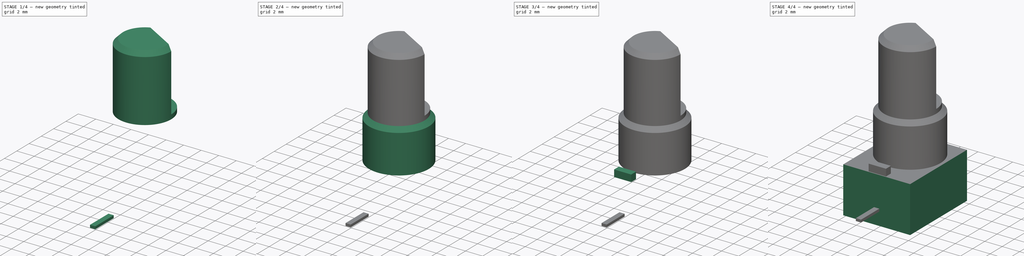
[diagram: build sequence overview — one tinted view per stage of 4, left to right]
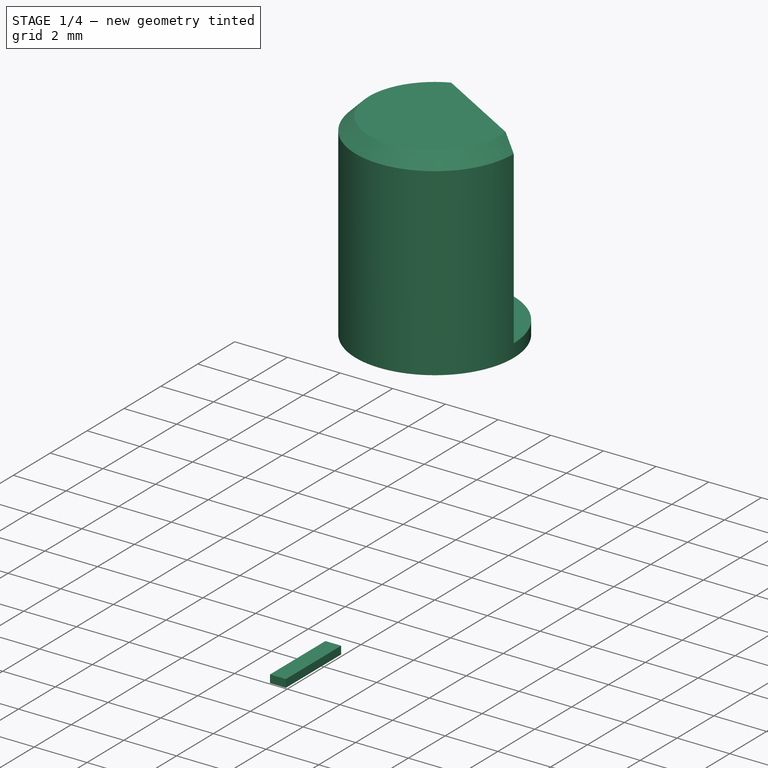
[diagram: stage 1 of 4 — iso view after this stage's code; geometry added in this stage tinted green]
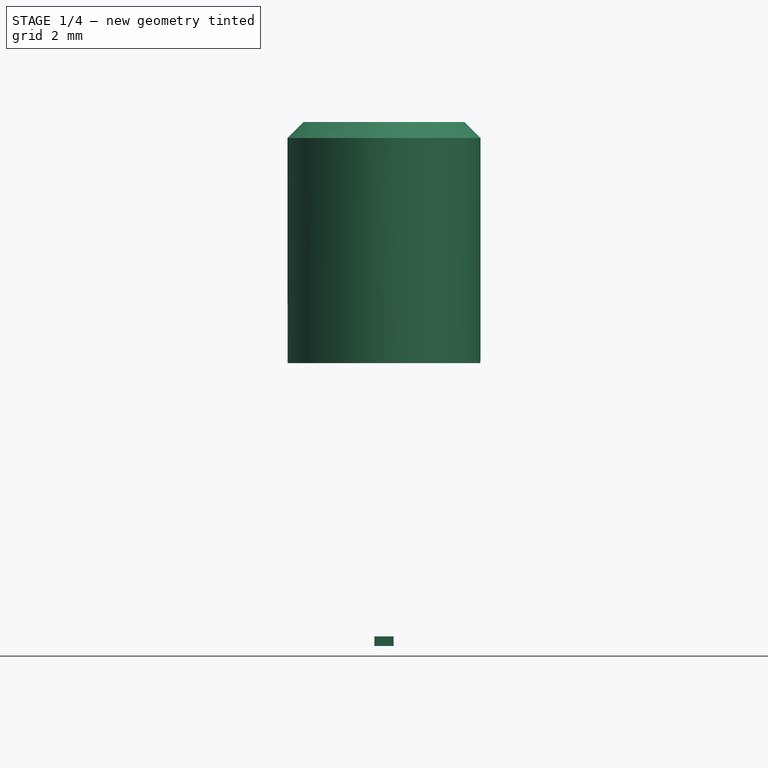
[diagram: stage 1 of 4 — front view after this stage's code; geometry added in this stage tinted green]
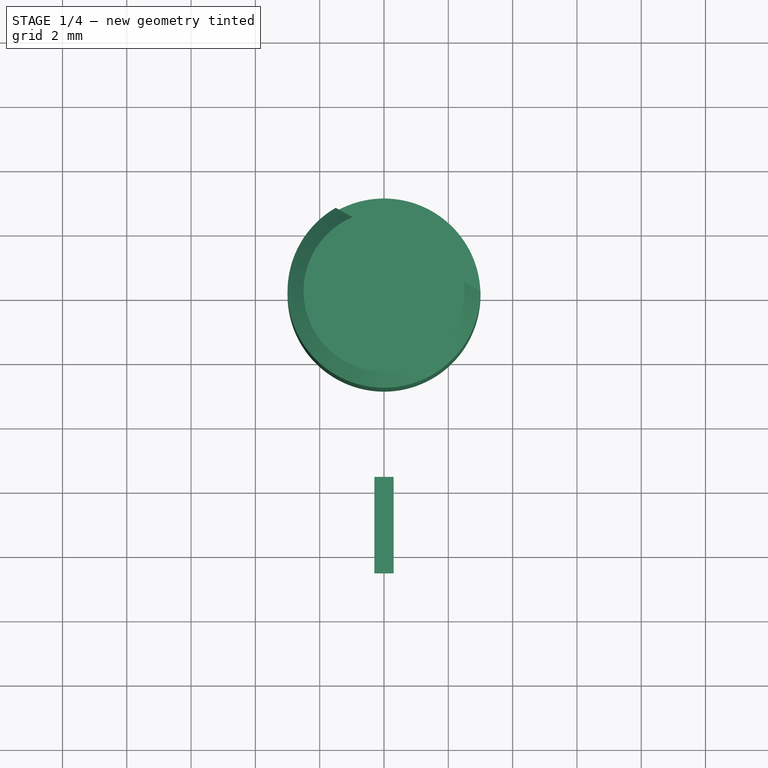
[diagram: stage 1 of 4 — top view after this stage's code; geometry added in this stage tinted green]
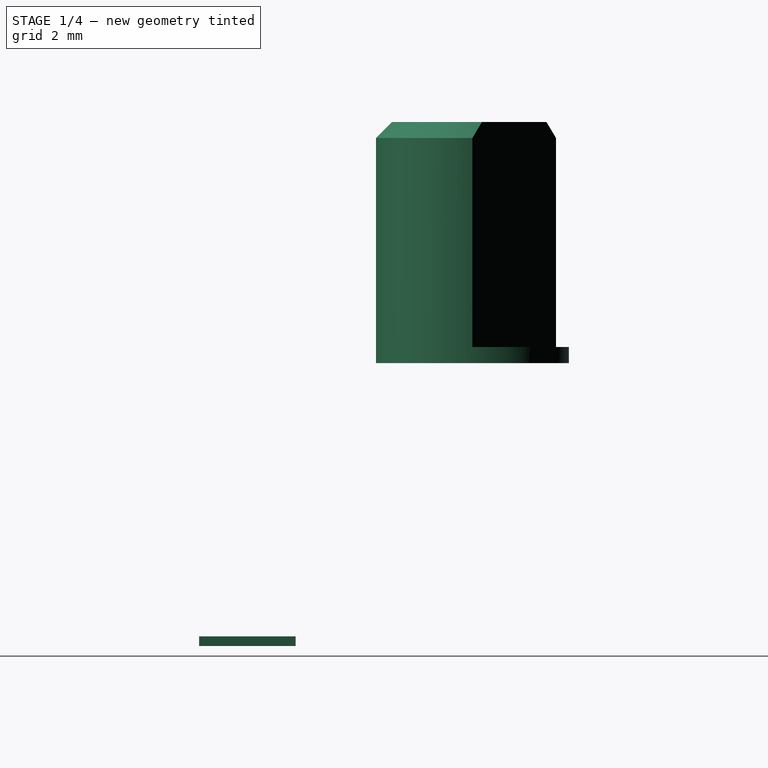
[diagram: stage 1 of 4 — right view after this stage's code; geometry added in this stage tinted green]
FCSTD DOCUMENT  (FreeCAD 0.18R16110 (Git))
Label: Alpha Taiwan Spreadsheet RD701F-20B1-12.5F
License: All rights reserved
LicenseURL: http://en.wikipedia.org/wiki/All_rights_reserved
objects: Sketcher::SketchObject×9, PartDesign::Body×9, PartDesign::Pad×5, PartDesign::Revolution×2, PartDesign::FeatureBase×2, Spreadsheet::Sheet×1, Part::Helix×1, PartDesign::ShapeBinder×1, PartDesign::SubtractivePipe×1, PartDesign::Pocket×1, App::Part×1
note: 40 computed .brp shape members not serialized (recipe doc carries the construction recipe); baked Part::Feature solids carry a one-line shape summary decoded from their .brp

FEATURE [PartDesign::Body] Body004  label="Thread"
  Group = -> [ShapeBinder,Sketch004,Sketch005,Revolution,SubtractivePipe]
  Origin = -> Origin005
  Tip = -> SubtractivePipe
FEATURE [Sketcher::SketchObject] Sketch006
  AttachmentOffset = pos=(0,10.3,0) rot=(0,1,0;1.5708rad)
  MapMode = 5
  Placement = pos=(0,2.3e-15,10.3) rot=(0.57735,0.57735,0.57735;2.0944rad)
  Support = -> [XZ_Plane006]
  expr: AttachmentOffset.Base.y = Data.body_z + Data.thread_z
  expr: AttachmentOffset.Base.z = 0
  expr: Constraints[12] = Data.shaft_r - 0.5mm
  expr: Constraints[11] = Data.shaft_r
  expr: Constraints[10] = Data.shaft_z
  sketch-geometry (5):
    g0: LineSegment StartX=0 StartY=0 StartZ=0 EndX=0 EndY=7.5 EndZ=0
    g1: LineSegment StartX=0 StartY=7.5 StartZ=0 EndX=2.5 EndY=7.5 EndZ=0
    g2: LineSegment StartX=2.5 StartY=7.5 StartZ=0 EndX=3 EndY=7 EndZ=0
    g3: LineSegment StartX=3 StartY=7 StartZ=0 EndX=3 EndY=0 EndZ=0
    g4: LineSegment StartX=3 StartY=0 StartZ=0 EndX=0 EndY=0 EndZ=0
  constraints (15):
    c: PointOnObject(g0,g-1)
    c: Vertical(g0)
    c: Coincident(g0,g1)
    c: Horizontal(g1)
    c: Coincident(g1,g2)
    c: Coincident(g2,g3)
    c: PointOnObject(g3,g-1)
    c: Vertical(g3)
    c: Coincident(g3,g4)
    c: Coincident(g4,g0)
    c: DistanceY(g0,g0) = 7.5
    c: DistanceX(g4,g4) = 3
    c: DistanceX(g1,g1) = 2.5
    c: Angle(g2,g3) = 2.35619
    c: PointOnObject(g0,g-2)
FEATURE [PartDesign::Revolution] Revolution001
  Angle = 360
  Axis = (0,2e-16,1)
  Base = (0,2.3e-15,10.3)
  Placement = pos=(0,0,0) rot=(1,0,0;1.5708rad)
  Profile = -> Sketch006
  ReferenceAxis = -> Sketch006 [V_Axis]
  Reversed = true
FEATURE [Sketcher::SketchObject] Sketch007
  AttachmentOffset = pos=(0,0,1.5) rot=(0,0,1;0rad)
  MapMode = 5
  Placement = pos=(0,0,1.5) rot=(0,0,1;0rad)
  Support = -> [XY_Plane007]
  expr: Constraints[10] = Data.body_y2
  expr: Constraints[9] = Data.terminal_x
  expr: AttachmentOffset.Base.z = Data.terminal_zpos
  expr: Constraints[8] = Data.terminal_y
  sketch-geometry (4):
    g0: LineSegment StartX=-0.3 StartY=-5.5 StartZ=0 EndX=0.3 EndY=-5.5 EndZ=0
    g1: LineSegment StartX=0.3 StartY=-5.5 StartZ=0 EndX=0.3 EndY=-8.5 EndZ=0
    g2: LineSegment StartX=0.3 StartY=-8.5 StartZ=0 EndX=-0.3 EndY=-8.5 EndZ=0
    g3: LineSegment StartX=-0.3 StartY=-8.5 StartZ=0 EndX=-0.3 EndY=-5.5 EndZ=0
  constraints (11):
    c: Coincident(g0,g1)
    c: Coincident(g1,g2)
    c: Coincident(g2,g3)
    c: Coincident(g3,g0)
    c: Horizontal(g2)
    c: Vertical(g1)
    c: Vertical(g3)
    c: Symmetric(g0,g0,g-2)
    c: DistanceY(g1,g1) = 3
    c: DistanceX(g0,g0) = 0.6
    c: DistanceY(g0,g-1) = 5.5
FEATURE [PartDesign::Pad] Pad004
  Length = 0.3
  Length2 = 100
  Profile = -> Sketch007
  Type = 0
  expr: Length = Data.terminal_z
FEATURE [PartDesign::Body] Body008  label="Terminal_3"
  Group = -> [Clone001]
  Origin = -> Origin009
  Placement = pos=(2,0,0) rot=(0,0,1;0rad)
  Tip = -> Clone001
  expr: Placement.Base.x = Data.terminal_p
FEATURE [Sketcher::SketchObject] Sketch008
  AttachmentOffset = pos=(0,0,17.8) rot=(0,0,1;0rad)
  MapMode = 5
  Placement = pos=(0,0,17.8) rot=(0,0,1;0rad)
  Support = -> [XY_Plane006]
  expr: AttachmentOffset.Base.z = Data.body_z + Data.thread_z + Data.shaft_z
  sketch-geometry (7):
    g0: LineSegment [constr] StartX=0 StartY=0 StartZ=0 EndX=5.75225 EndY=9.96319 EndZ=0
    g1: LineSegment StartX=-2.25735 StartY=3.03533 StartZ=0 EndX=3.75735 EndY=-0.437256 EndZ=0
    g2: LineSegment StartX=3.75735 StartY=-0.437256 StartZ=0 EndX=5.52528 EndY=1.47889 EndZ=0
    g3: LineSegment StartX=5.52528 StartY=1.47889 StartZ=0 EndX=-1.48189 EndY=5.52448 EndZ=0
    g4: LineSegment StartX=-1.48189 StartY=5.52448 StartZ=0 EndX=-2.25735 EndY=3.03533 EndZ=0
    g5: GeomPoint X=2.0217 Y=3.50168 Z=0
    g6: GeomPoint X=0.75 Y=1.29904 Z=0
  constraints (13):
    c: Coincident(g0,g-1)
    c: Angle(g0,g-2) = 0.523599
    c: Coincident(g1,g2)
    c: Coincident(g2,g3)
    c: Coincident(g3,g4)
    c: Coincident(g4,g1)
    c: PointOnObject(g5,g3)
    c: PointOnObject(g5,g0)
    c: PointOnObject(g6,g1)
    c: PointOnObject(g6,g0)
    c: Symmetric(g1,g1,g0)
    c: Symmetric(g2,g3,g0)
    c: Distance(g-1,g1) = 1.5
FEATURE [PartDesign::Pocket] Pocket
  BaseFeature = -> Revolution001
  Length = 7
  Length2 = 100
  Placement = pos=(0,0,0) rot=(1,0,0;1.5708rad)
  Profile = -> Sketch008
  Type = 0
FEATURE [PartDesign::Body] Body005  label="Shaft"
  Group = -> [Sketch006,Revolution001,Sketch008,Pocket]
  Origin = -> Origin006
  Tip = -> Pocket
FEATURE [App::Part] Part  label="RD701F-20B1-12.5F"
  Group = -> [Body,Body001,Body002,Body003,Body004,Body005,Body006,Body007,Body008]
  Origin = -> Origin
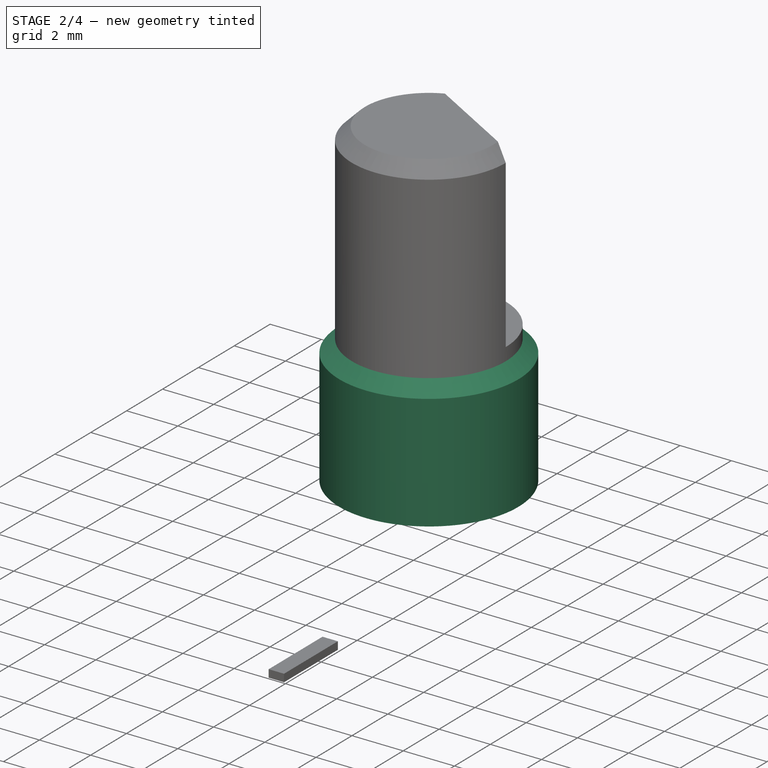
[diagram: stage 2 of 4 — iso view after this stage's code; geometry added in this stage tinted green]
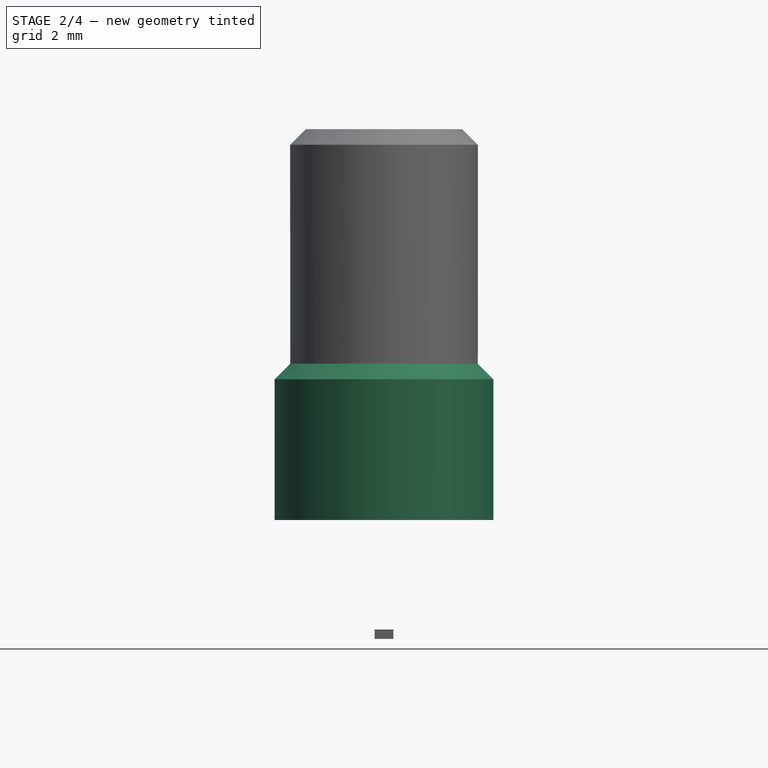
[diagram: stage 2 of 4 — front view after this stage's code; geometry added in this stage tinted green]
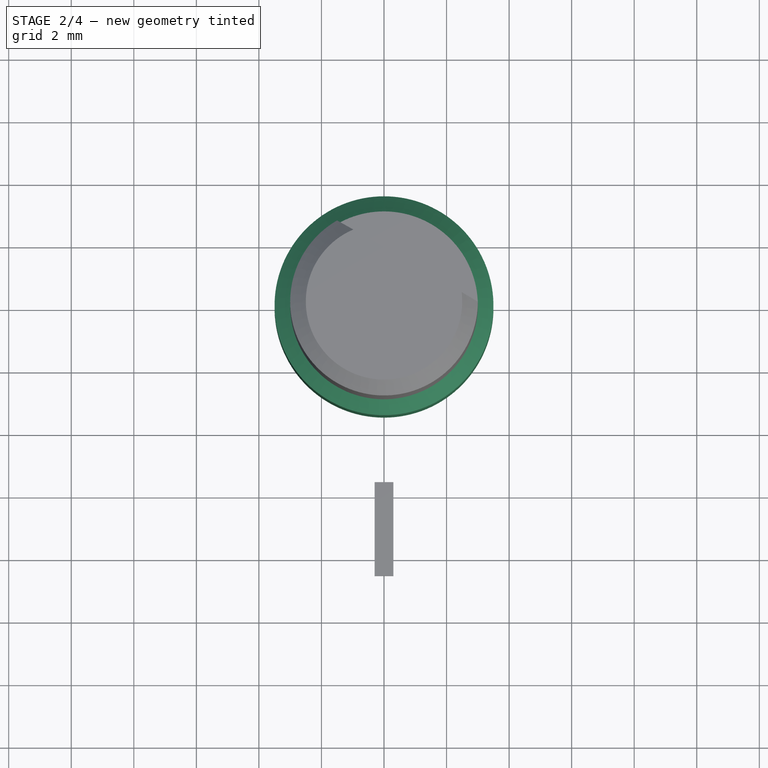
[diagram: stage 2 of 4 — top view after this stage's code; geometry added in this stage tinted green]
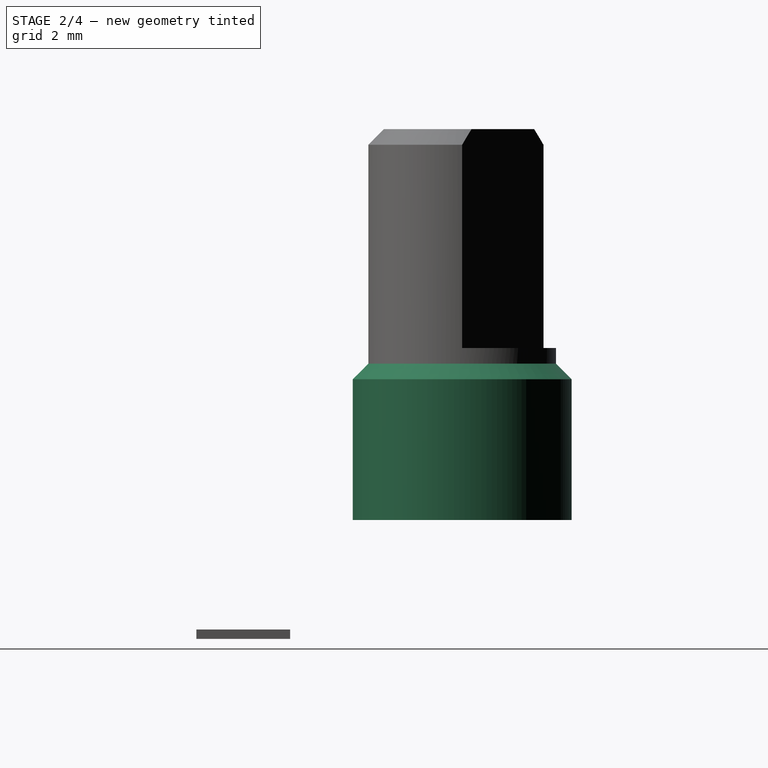
[diagram: stage 2 of 4 — right view after this stage's code; geometry added in this stage tinted green]
FEATURE [PartDesign::Body] Body003  label="Tab"
  Group = -> [Sketch003,Pad003]
  Origin = -> Origin004
  Tip = -> Pad003
FEATURE [Part::Helix] Helix
  Angle = 0
  AttacherType = Attacher::AttachEngine3D
  Height = 6.5
  LocalCoord = 0
  Pitch = 0.75
  Placement = pos=(0,0,4.55) rot=(0,0,1;1.5708rad)
  Radius = 3.5
  Style = 1
  expr: Radius = Data.thread_r
  expr: Pitch = Data.thread_p
  expr: Height = Data.thread_z + 2 * Data.thread_p
  expr: Placement.Base.z = Data.body_z - Data.thread_p
FEATURE [PartDesign::ShapeBinder] ShapeBinder  label="HelixShapeBinder"
  Placement = pos=(0,0,4.55) rot=(0,0,1;1.5708rad)
  Support = -> [Helix]
  TraceSupport = false
FEATURE [Sketcher::SketchObject] Sketch004  label="ISOThreadProfile"
  AttachmentOffset = pos=(0,0,0) rot=(0,1,0;1.5708rad)
  MapMode = 5
  Placement = pos=(0,0,0) rot=(0.57735,0.57735,0.57735;2.0944rad)
  Support = -> [XZ_Plane005]
  expr: Constraints[25] = Data.thread_r + 0.1mm
  expr: Constraints[16] = Data.thread_H / 4
  expr: Constraints[20] = Data.thread_H / 8
  expr: Constraints[15] = Data.thread_H
  sketch-geometry (9):
    g0: LineSegment [constr] StartX=3.03169 StartY=5.60275 StartZ=0 EndX=3.68119 EndY=5.22776 EndZ=0
    g1: LineSegment [constr] StartX=3.68119 StartY=5.22776 StartZ=0 EndX=3.68119 EndY=5.97774 EndZ=0
    g2: LineSegment [constr] StartX=3.68119 StartY=5.97774 StartZ=0 EndX=3.03169 EndY=5.60275 EndZ=0
    g3: Circle [constr] CenterX=3.46469 CenterY=5.60275 CenterZ=0 NormalX=0 NormalY=0 NormalZ=1 AngleXU=0 Radius=0.433
    g4: LineSegment [constr] StartX=3.03169 StartY=5.60275 StartZ=0 EndX=3.68119 EndY=5.60275 EndZ=0
    g5: LineSegment StartX=3.19406 StartY=5.6965 StartZ=0 EndX=3.19406 EndY=5.509 EndZ=0
    g6: LineSegment StartX=3.6 StartY=5.93087 StartZ=0 EndX=3.6 EndY=5.27464 EndZ=0
    g7: LineSegment StartX=3.19406 StartY=5.6965 StartZ=0 EndX=3.6 EndY=5.93087 EndZ=0
    g8: LineSegment StartX=3.6 StartY=5.27464 StartZ=0 EndX=3.19406 EndY=5.509 EndZ=0
  constraints (26):
    c: Coincident(g0,g1)
    c: Coincident(g1,g2)
    c: Coincident(g2,g0)
    c: Equal(g0,g1)
    c: Equal(g0,g2)
    c: PointOnObject(g0,g3)
    c: PointOnObject(g1,g3)
    c: PointOnObject(g2,g3)
    c: Vertical(g1)
    c: Coincident(g4,g0)
    c: PointOnObject(g4,g1)
    c: PointOnObject(g3,g4)
    c: PointOnObject(g5,g2)
    c: PointOnObject(g5,g0)
    c: Vertical(g5)
    c: DistanceX(g0,g4) = 0.6495
    c: DistanceX(g0,g5) = 0.162375
    c: PointOnObject(g6,g2)
    c: PointOnObject(g6,g0)
    c: Vertical(g6)
    c: DistanceX(g6,g1) = 0.0811875
    c: Coincident(g7,g5)
    c: Coincident(g7,g6)
    c: Coincident(g8,g6)
    c: Coincident(g8,g5)
    c: DistanceX(g-1,g6) = 3.6
FEATURE [Sketcher::SketchObject] Sketch005
  AttachmentOffset = pos=(0,5.3,0) rot=(0,1,0;1.5708rad)
  MapMode = 5
  Placement = pos=(0,1.2e-15,5.3) rot=(0.57735,0.57735,0.57735;2.0944rad)
  Support = -> [XZ_Plane005]
  expr: AttachmentOffset.Base.y = Data.body_z
  expr: AttachmentOffset.Base.z = 0
  expr: Constraints[12] = Data.shaft_r
  expr: Constraints[11] = Data.thread_z
  expr: Constraints[10] = Data.thread_r
  sketch-geometry (5):
    g0: LineSegment StartX=0 StartY=0 StartZ=0 EndX=0 EndY=5 EndZ=0
    g1: LineSegment StartX=0 StartY=5 StartZ=0 EndX=3 EndY=5 EndZ=0
    g2: LineSegment StartX=3 StartY=5 StartZ=0 EndX=3.5 EndY=4.5 EndZ=0
    g3: LineSegment StartX=3.5 StartY=4.5 StartZ=0 EndX=3.5 EndY=0 EndZ=0
    g4: LineSegment StartX=3.5 StartY=0 StartZ=0 EndX=0 EndY=0 EndZ=0
  constraints (14):
    c: Coincident(g0,g-1)
    c: PointOnObject(g0,g-2)
    c: Coincident(g1,g0)
    c: Horizontal(g1)
    c: Coincident(g2,g1)
    c: Coincident(g3,g2)
    c: PointOnObject(g3,g-1)
    c: Vertical(g3)
    c: Coincident(g4,g3)
    c: Coincident(g4,g0)
    c: DistanceX(g4,g4) = 3.5
    c: DistanceY(g0,g0) = 5
    c: DistanceX(g1,g1) = 3
    c: Angle(g2,g3) = 2.35619
FEATURE [PartDesign::Revolution] Revolution
  Angle = 360
  Axis = (0,2e-16,1)
  Base = (0,1.2e-15,5.3)
  Placement = pos=(0,0,0) rot=(1,0,0;1.5708rad)
  Profile = -> Sketch005
  ReferenceAxis = -> Sketch005 [V_Axis]
  Reversed = true
FEATURE [PartDesign::Body] Body006  label="Terminal_2"
  Group = -> [Sketch007,Pad004]
  Origin = -> Origin007
  Tip = -> Pad004
FEATURE [PartDesign::FeatureBase] Clone
  BaseFeature = -> Body006
FEATURE [PartDesign::Body] Body007  label="Terminal_1"
  Group = -> [Clone]
  Origin = -> Origin008
  Placement = pos=(-2,0,0) rot=(0,0,1;0rad)
  Tip = -> Clone
  expr: Placement.Base.x = -Data.terminal_p
FEATURE [PartDesign::FeatureBase] Clone001
  BaseFeature = -> Body006
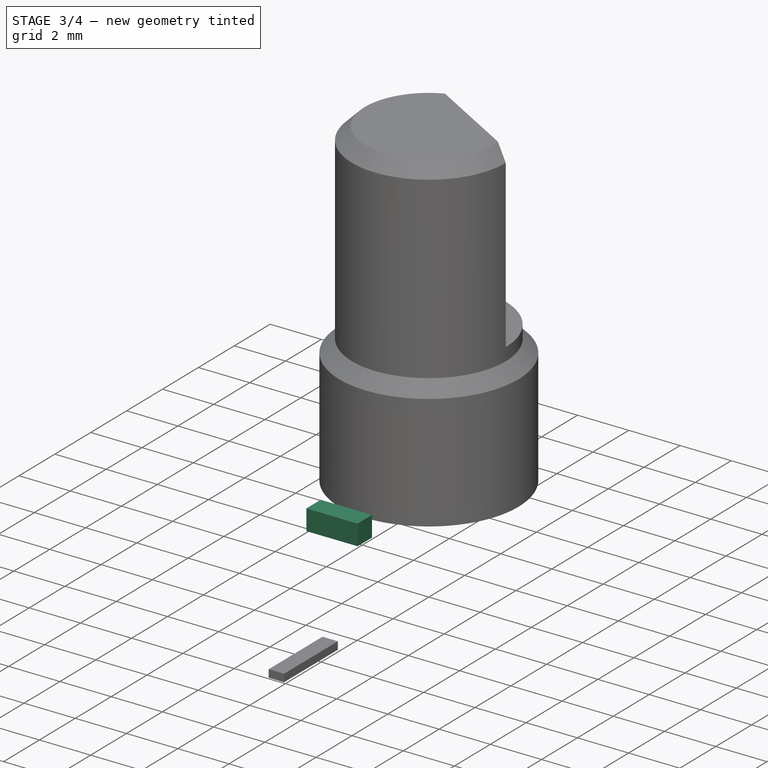
[diagram: stage 3 of 4 — iso view after this stage's code; geometry added in this stage tinted green]
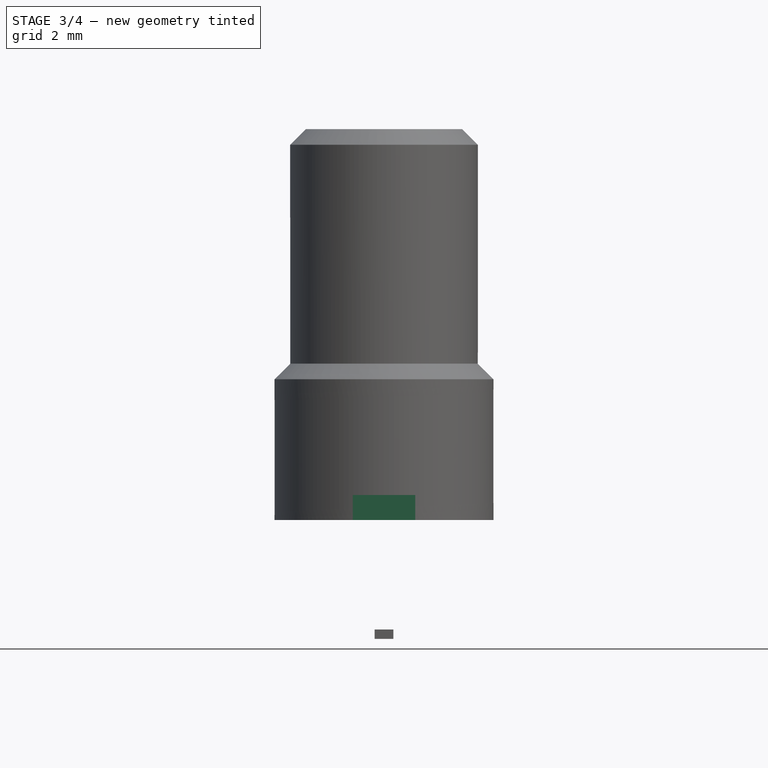
[diagram: stage 3 of 4 — front view after this stage's code; geometry added in this stage tinted green]
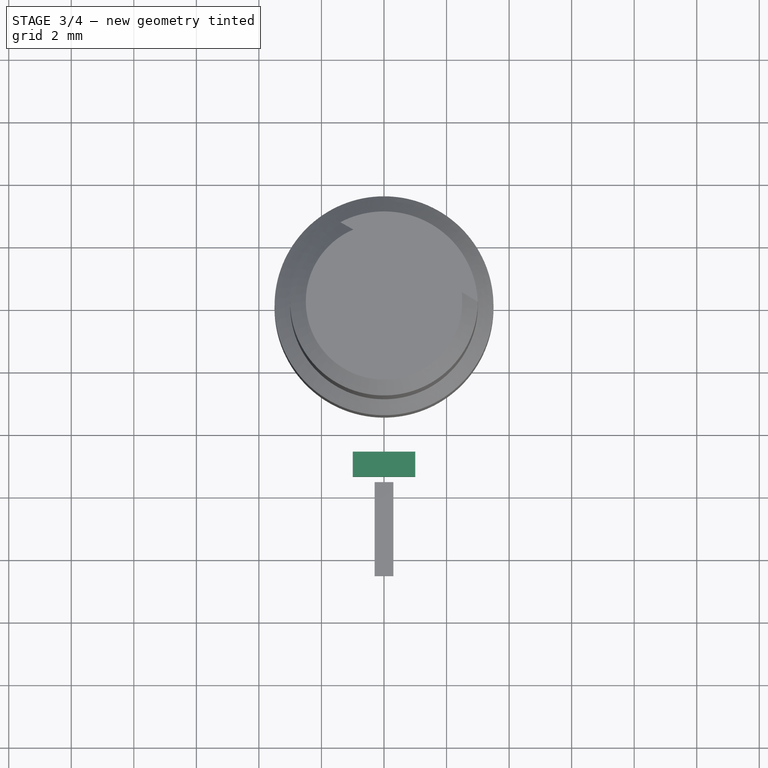
[diagram: stage 3 of 4 — top view after this stage's code; geometry added in this stage tinted green]
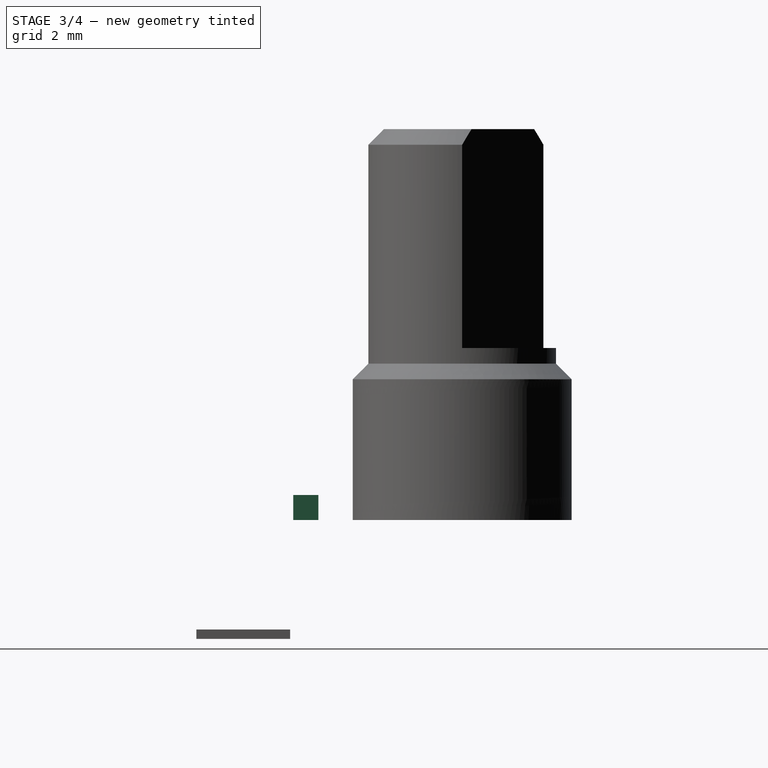
[diagram: stage 3 of 4 — right view after this stage's code; geometry added in this stage tinted green]
FEATURE [PartDesign::Body] Body002  label="Body_3"
  Group = -> [Sketch002,Pad002]
  Origin = -> Origin003
FEATURE [Sketcher::SketchObject] Sketch003
  AttachmentOffset = pos=(0,0,5.3) rot=(0,0,1;0rad)
  MapMode = 5
  Placement = pos=(0,0,5.3) rot=(0,0,1;0rad)
  Support = -> [XY_Plane004]
  expr: Constraints[17] = Data.tab_ypos
  expr: Constraints[9] = Data.tab_y
  expr: AttachmentOffset.Base.z = Data.body_z
  expr: Constraints[8] = Data.tab_x
  sketch-geometry (8):
    g0: LineSegment StartX=-1 StartY=-4.6 StartZ=0 EndX=1 EndY=-4.6 EndZ=0
    g1: LineSegment StartX=1 StartY=-4.6 StartZ=0 EndX=1 EndY=-5.4 EndZ=0
    g2: LineSegment StartX=1 StartY=-5.4 StartZ=0 EndX=-1 EndY=-5.4 EndZ=0
    g3: LineSegment StartX=-1 StartY=-5.4 StartZ=0 EndX=-1 EndY=-4.6 EndZ=0
    g4: LineSegment [constr] StartX=-1 StartY=-5.4 StartZ=0 EndX=1 EndY=-4.6 EndZ=0
    g5: LineSegment [constr] StartX=-1 StartY=-4.6 StartZ=0 EndX=1 EndY=-5.4 EndZ=0
    g6: GeomPoint X=3e-16 Y=-5 Z=0
    g7: GeomPoint X=3e-16 Y=-5 Z=0
  constraints (18):
    c: Coincident(g0,g1)
    c: Coincident(g1,g2)
    c: Coincident(g2,g3)
    c: Coincident(g3,g0)
    c: Horizontal(g2)
    c: Vertical(g1)
    c: Vertical(g3)
    c: Symmetric(g0,g0,g-2)
    c: DistanceX(g2,g2) = 2
    c: DistanceY(g1,g1) = 0.8
    c: Coincident(g4,g2)
    c: Coincident(g4,g0)
    c: Coincident(g5,g0)
    c: Coincident(g5,g1)
    c: PointOnObject(g6,g5)
    c: PointOnObject(g7,g4)
    c: Coincident(g7,g6)
    c: DistanceY(g6,g-1) = 5
FEATURE [PartDesign::Pad] Pad003
  Length = 0.8
  Length2 = 100
  Profile = -> Sketch003
  Type = 0
  expr: Length = Data.tab_z
FEATURE [PartDesign::SubtractivePipe] SubtractivePipe
  AuxilleryCurvelinear = true
  AuxillerySpineTangent = false
  BaseFeature = -> Revolution
  Binormal = (0,0,0)
  Mode = 2
  Placement = pos=(0,0,0) rot=(1,0,0;1.5708rad)
  Profile = -> Sketch004
  Spine = -> ShapeBinder
  SpineTangent = false
  Transformation = 0
  Transition = 0
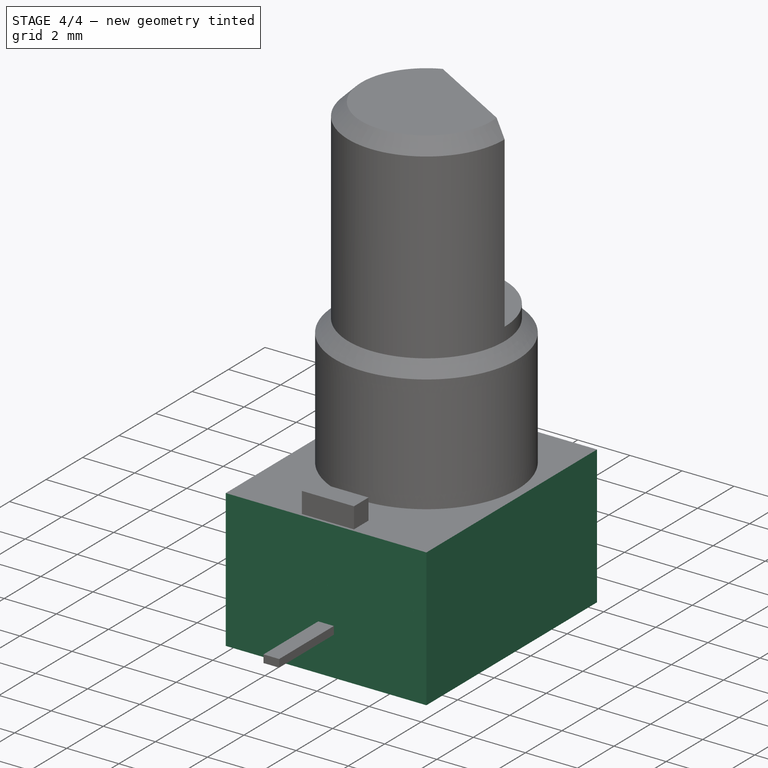
[diagram: stage 4 of 4 — iso view after this stage's code; geometry added in this stage tinted green]
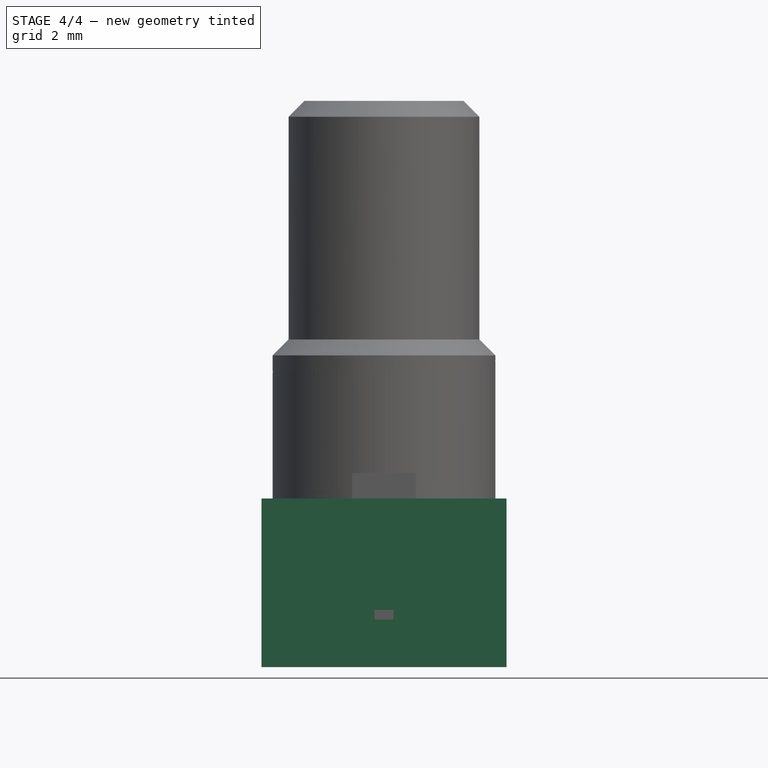
[diagram: stage 4 of 4 — front view after this stage's code; geometry added in this stage tinted green]
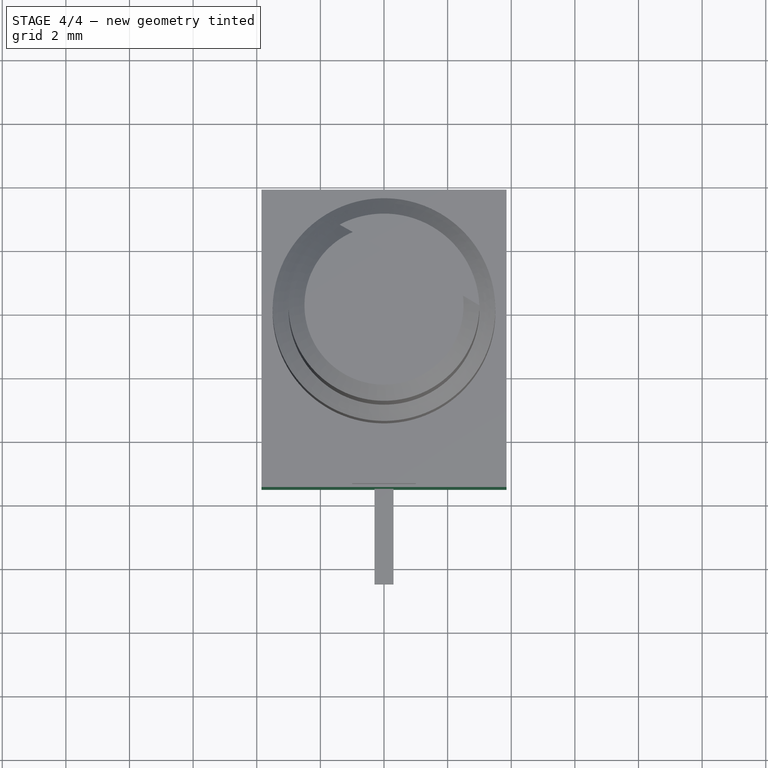
[diagram: stage 4 of 4 — top view after this stage's code; geometry added in this stage tinted green]
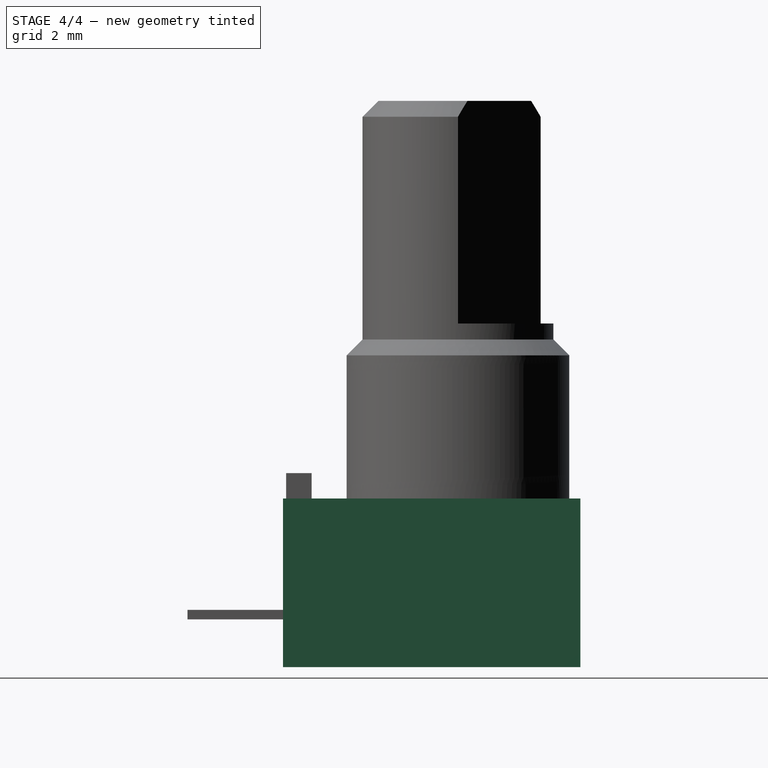
[diagram: stage 4 of 4 — right view after this stage's code; geometry added in this stage tinted green]
FEATURE [Spreadsheet::Sheet] Spreadsheet  label="Data"
  cells = B1=RD701F; A4=body_x; B4(body_x)==7.7mm; A5=body_y; B5==3.85mm + 5.5mm; A6=body_y1; B6(body_y1)==3.85mm; A7=body_y2; B7(body_y2)==5.5mm; A8=body_z; B8(body_z)==5.3mm; A9=body_z1; B9(body_z1)==1mm; A10=body_z2; B10(body_z2)==2.15mm; A11=body_z3; B11(body_z3)==2.15mm; A13=tab_x; B13(tab_x)==2mm; A14=tab_y; B14(tab_y)==0.8mm; A15=tab_z; B15(tab_z)==0.8mm; A16=tab_ypos; B16(tab_ypos)==5mm; A18=thread_r; B18(thread_r)==3.5mm; A19=thread_p; B19(thread_p)==0.75mm; A20=thread_z; B20(thread_z)==5mm; A21=thread_H; B21(thread_H)==0.866 * thread_p; A23=shaft_r; B23(shaft_r)==3mm; A24=shaft_z; B24(shaft_z)==7.5mm; A25=shaft_F; B25(shaft_F)==6mm; A27=terminal_x; B27(terminal_x)==0.6mm; A28=terminal_y; B28(terminal_y)==3mm; A29=terminal_z; B29(terminal_z)==0.3mm; A30=terminal_zpos; B30(terminal_zpos)==1.5mm; A31=terminal_p; B31(terminal_p)==2mm
FEATURE [Sketcher::SketchObject] Sketch
  MapMode = 5
  Support = -> [XY_Plane001]
  expr: Constraints[10] = Data.body_y2
  expr: Constraints[9] = Data.body_y1
  expr: Constraints[8] = Data.body_x
  sketch-geometry (4):
    g0: LineSegment StartX=-3.85 StartY=3.85 StartZ=0 EndX=3.85 EndY=3.85 EndZ=0
    g1: LineSegment StartX=3.85 StartY=3.85 StartZ=0 EndX=3.85 EndY=-5.5 EndZ=0
    g2: LineSegment StartX=3.85 StartY=-5.5 StartZ=0 EndX=-3.85 EndY=-5.5 EndZ=0
    g3: LineSegment StartX=-3.85 StartY=-5.5 StartZ=0 EndX=-3.85 EndY=3.85 EndZ=0
  constraints (11):
    c: Coincident(g0,g1)
    c: Coincident(g1,g2)
    c: Coincident(g2,g3)
    c: Coincident(g3,g0)
    c: Horizontal(g2)
    c: Vertical(g1)
    c: Vertical(g3)
    c: Symmetric(g0,g0,g-2)
    c: DistanceX(g0,g0) = 7.7
    c: DistanceY(g-1,g0) = 3.85
    c: DistanceY(g1,g-1) = 5.5
FEATURE [PartDesign::Pad] Pad
  Length = 1
  Length2 = 100
  Profile = -> Sketch
  Type = 0
  expr: Length = Data.body_z1
FEATURE [PartDesign::Body] Body  label="Body_1"
  Group = -> [Sketch,Pad]
  Origin = -> Origin001
  Tip = -> Pad
FEATURE [Sketcher::SketchObject] Sketch001
  AttachmentOffset = pos=(0,0,1) rot=(0,0,1;0rad)
  MapMode = 5
  Placement = pos=(0,0,1) rot=(0,0,1;0rad)
  Support = -> [XY_Plane002]
  expr: Constraints[10] = Sketch.Constraints[10]
  expr: Constraints[9] = Sketch.Constraints[9]
  expr: AttachmentOffset.Base.z = Data.body_z1
  expr: Constraints[8] = Sketch.Constraints[8]
  sketch-geometry (4):
    g0: LineSegment StartX=-3.85 StartY=3.85 StartZ=0 EndX=3.85 EndY=3.85 EndZ=0
    g1: LineSegment StartX=3.85 StartY=3.85 StartZ=0 EndX=3.85 EndY=-5.5 EndZ=0
    g2: LineSegment StartX=3.85 StartY=-5.5 StartZ=0 EndX=-3.85 EndY=-5.5 EndZ=0
    g3: LineSegment StartX=-3.85 StartY=-5.5 StartZ=0 EndX=-3.85 EndY=3.85 EndZ=0
  constraints (11):
    c: Coincident(g0,g1)
    c: Coincident(g1,g2)
    c: Coincident(g2,g3)
    c: Coincident(g3,g0)
    c: Horizontal(g2)
    c: Vertical(g1)
    c: Vertical(g3)
    c: Symmetric(g0,g0,g-2)
    c: DistanceX(g0,g0) = 7.7
    c: DistanceY(g-1,g0) = 3.85
    c: DistanceY(g1,g-1) = 5.5
FEATURE [PartDesign::Pad] Pad001
  Length = 2.15
  Length2 = 100
  Profile = -> Sketch001
  Type = 0
  expr: Length = Data.body_z2
FEATURE [PartDesign::Body] Body001  label="Body_2"
  Group = -> [Sketch001,Pad001]
  Origin = -> Origin002
  Tip = -> Pad001
FEATURE [Sketcher::SketchObject] Sketch002
  AttachmentOffset = pos=(0,0,3.15) rot=(0,0,1;0rad)
  MapMode = 5
  Placement = pos=(0,0,3.15) rot=(0,0,1;0rad)
  Support = -> [XY_Plane003]
  expr: Constraints[10] = Sketch.Constraints[10]
  expr: Constraints[9] = Sketch.Constraints[9]
  expr: AttachmentOffset.Base.z = Data.body_z1 + Data.body_z2
  expr: Constraints[8] = Sketch.Constraints[8]
  sketch-geometry (4):
    g0: LineSegment StartX=-3.85 StartY=3.85 StartZ=0 EndX=3.85 EndY=3.85 EndZ=0
    g1: LineSegment StartX=3.85 StartY=3.85 StartZ=0 EndX=3.85 EndY=-5.5 EndZ=0
    g2: LineSegment StartX=3.85 StartY=-5.5 StartZ=0 EndX=-3.85 EndY=-5.5 EndZ=0
    g3: LineSegment StartX=-3.85 StartY=-5.5 StartZ=0 EndX=-3.85 EndY=3.85 EndZ=0
  constraints (11):
    c: Coincident(g0,g1)
    c: Coincident(g1,g2)
    c: Coincident(g2,g3)
    c: Coincident(g3,g0)
    c: Horizontal(g2)
    c: Vertical(g1)
    c: Vertical(g3)
    c: Symmetric(g0,g0,g-2)
    c: DistanceX(g0,g0) = 7.7
    c: DistanceY(g-1,g0) = 3.85
    c: DistanceY(g1,g-1) = 5.5
FEATURE [PartDesign::Pad] Pad002
  Length = 2.15
  Length2 = 100
  Profile = -> Sketch002
  Type = 0
  expr: Length = Data.body_z3
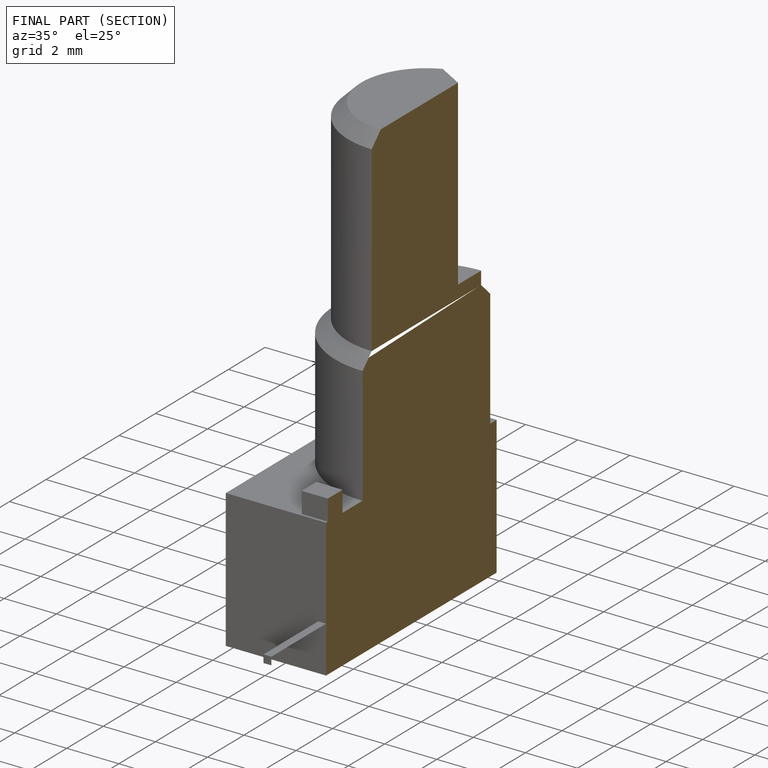
[diagram: finished part — half-section view (interior)]
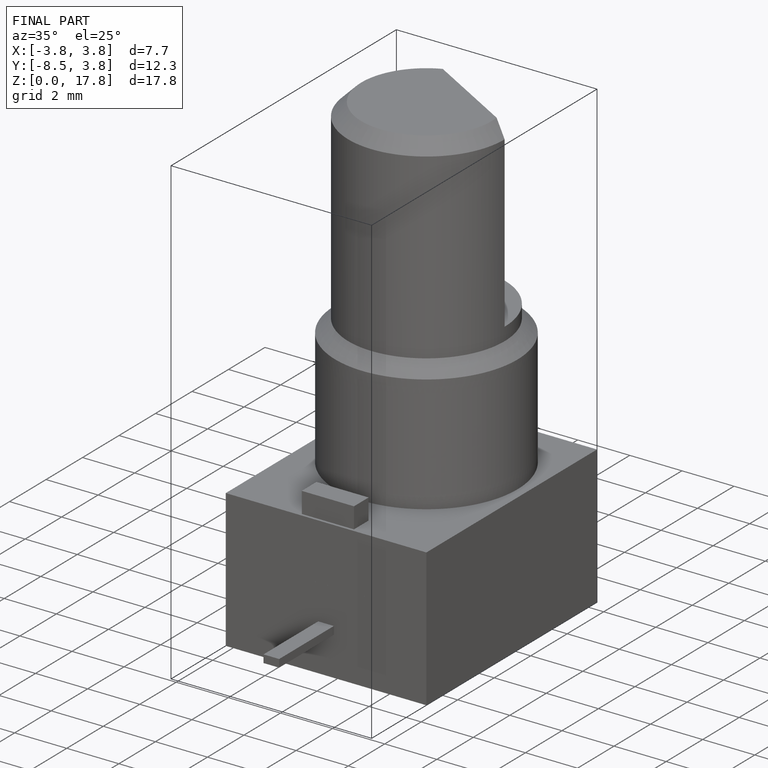
[diagram: finished part — iso view with bounding-box wireframe]
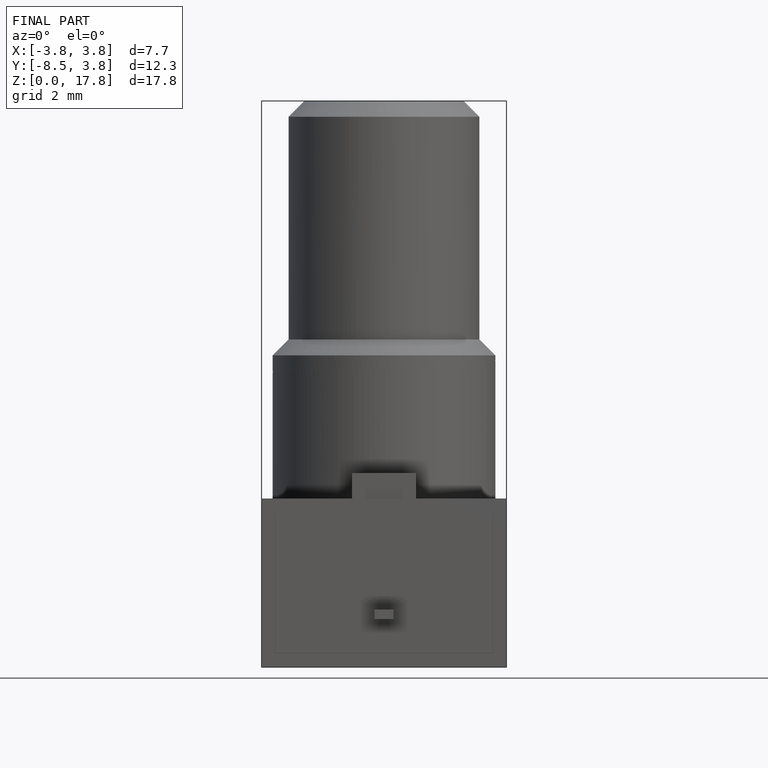
[diagram: finished part — front view with bounding-box wireframe]
